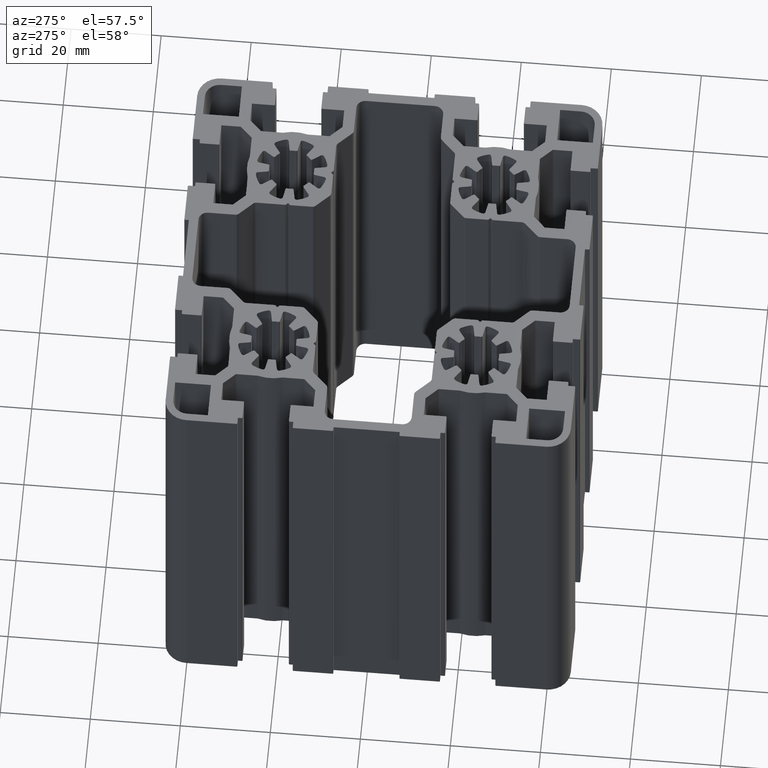
[diagram: clean part render]
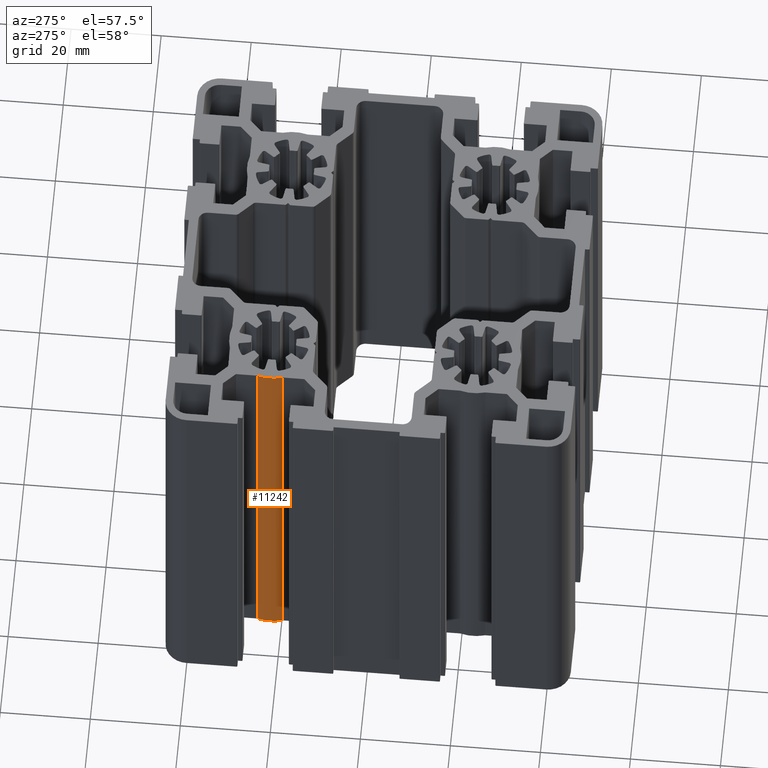
[diagram: same view with one face highlighted and labeled with its STEP entity id]
A machine part, auxiliary view. The second image highlights one B-rep face of the part: STEP entity #11242.
In plain terms, the highlighted cylindrical surface (partial cylindrical patch) has radius 9.9 mm, axis along (0, 0, 1).
Its self-contained STEP definition (entity closure, byte-faithful):
#648=FACE_OUTER_BOUND('',#1222,.T.);
#1222=EDGE_LOOP('',(#8525,#8526,#8527,#8528));
#2103=LINE('',#18142,#3227);
#2104=LINE('',#18145,#3228);
#3227=VECTOR('',#14729,100.);
#3228=VECTOR('',#14732,100.);
#4113=CIRCLE('',#12207,9.9);
#4114=CIRCLE('',#12208,9.9);
#4997=VERTEX_POINT('',#18138);
#4998=VERTEX_POINT('',#18139);
#4999=VERTEX_POINT('',#18141);
#5000=VERTEX_POINT('',#18143);
#6475=EDGE_CURVE('',#4997,#4998,#4113,.T.);
#6476=EDGE_CURVE('',#4999,#4997,#2103,.T.);
#6477=EDGE_CURVE('',#5000,#4999,#4114,.T.);
#6478=EDGE_CURVE('',#5000,#4998,#2104,.T.);
#8525=ORIENTED_EDGE('',*,*,#6475,.F.);
#8526=ORIENTED_EDGE('',*,*,#6476,.F.);
#8527=ORIENTED_EDGE('',*,*,#6477,.F.);
#8528=ORIENTED_EDGE('',*,*,#6478,.T.);
#10803=CYLINDRICAL_SURFACE('',#12206,9.9);
#11242=ADVANCED_FACE('',(#648),#10803,.T.);
#12206=AXIS2_PLACEMENT_3D('',#18137,#14725,#14726);
#12207=AXIS2_PLACEMENT_3D('',#18140,#14727,#14728);
#12208=AXIS2_PLACEMENT_3D('',#18144,#14730,#14731);
#14725=DIRECTION('center_axis',(0.,0.,1.));
#14726=DIRECTION('ref_axis',(-0.959595960151687,0.281381579462057,0.));
#14727=DIRECTION('center_axis',(0.,0.,1.));
#14728=DIRECTION('ref_axis',(-0.959595960151687,0.281381579462057,0.));
#14729=DIRECTION('',(0.,0.,1.));
#14730=DIRECTION('center_axis',(0.,0.,-1.));
#14731=DIRECTION('ref_axis',(-0.959595960151687,0.281381579462057,0.));
#14732=DIRECTION('',(0.,0.,1.));
#18137=CARTESIAN_POINT('Origin',(-22.5000000982949,22.500000652405,0.));
#18138=CARTESIAN_POINT('',(-32.0000001037966,25.2856782890794,100.));
#18139=CARTESIAN_POINT('',(-32.0000001037966,19.7143230157306,100.));
#18140=CARTESIAN_POINT('Origin',(-22.5000000982949,22.500000652405,100.));
#18141=CARTESIAN_POINT('',(-32.0000001037966,25.2856782890794,0.));
#18142=CARTESIAN_POINT('',(-32.0000001037966,25.2856782890794,0.));
#18143=CARTESIAN_POINT('',(-32.0000001037966,19.7143230157306,0.));
#18144=CARTESIAN_POINT('Origin',(-22.5000000982949,22.500000652405,0.));
#18145=CARTESIAN_POINT('',(-32.0000001037966,19.7143230157306,0.));